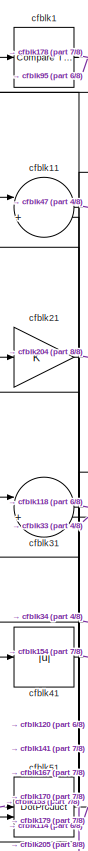
[diagram: root canvas - part 1/8, top left region]
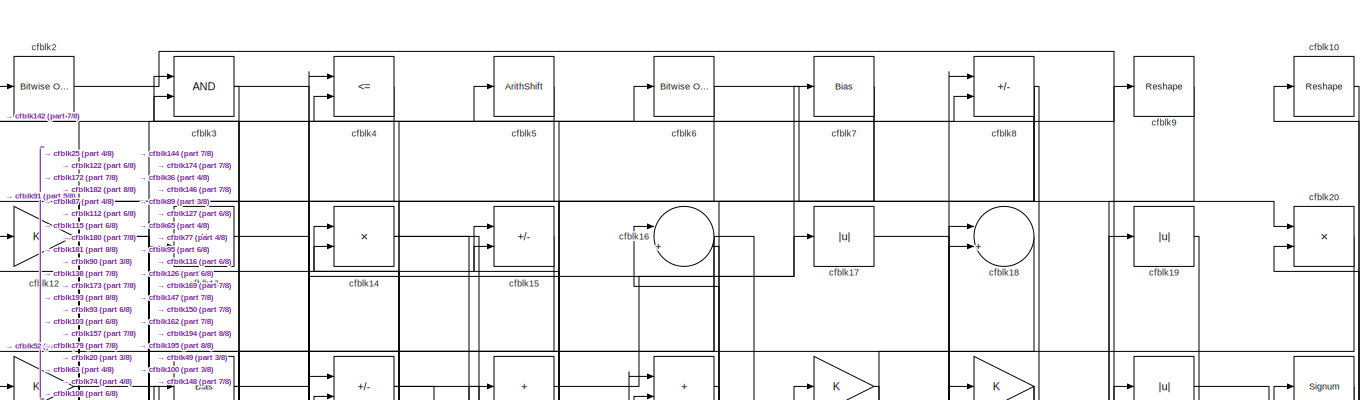
[diagram: root canvas - part 2/8, full width, top band]
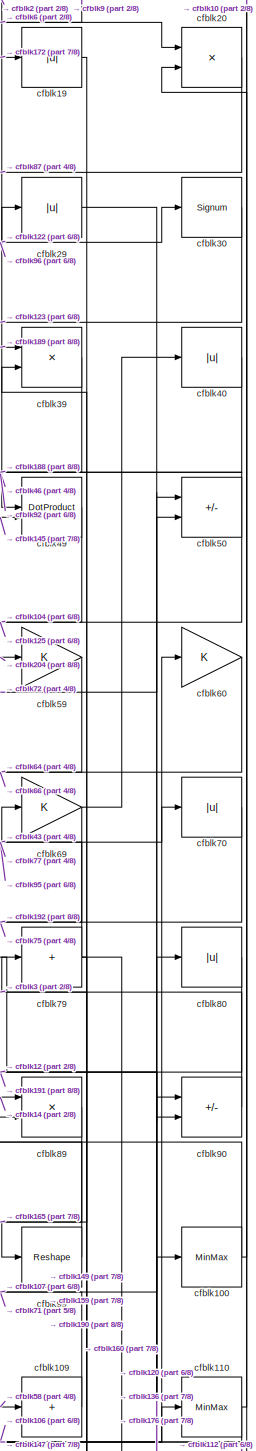
[diagram: root canvas - part 3/8, top right region]
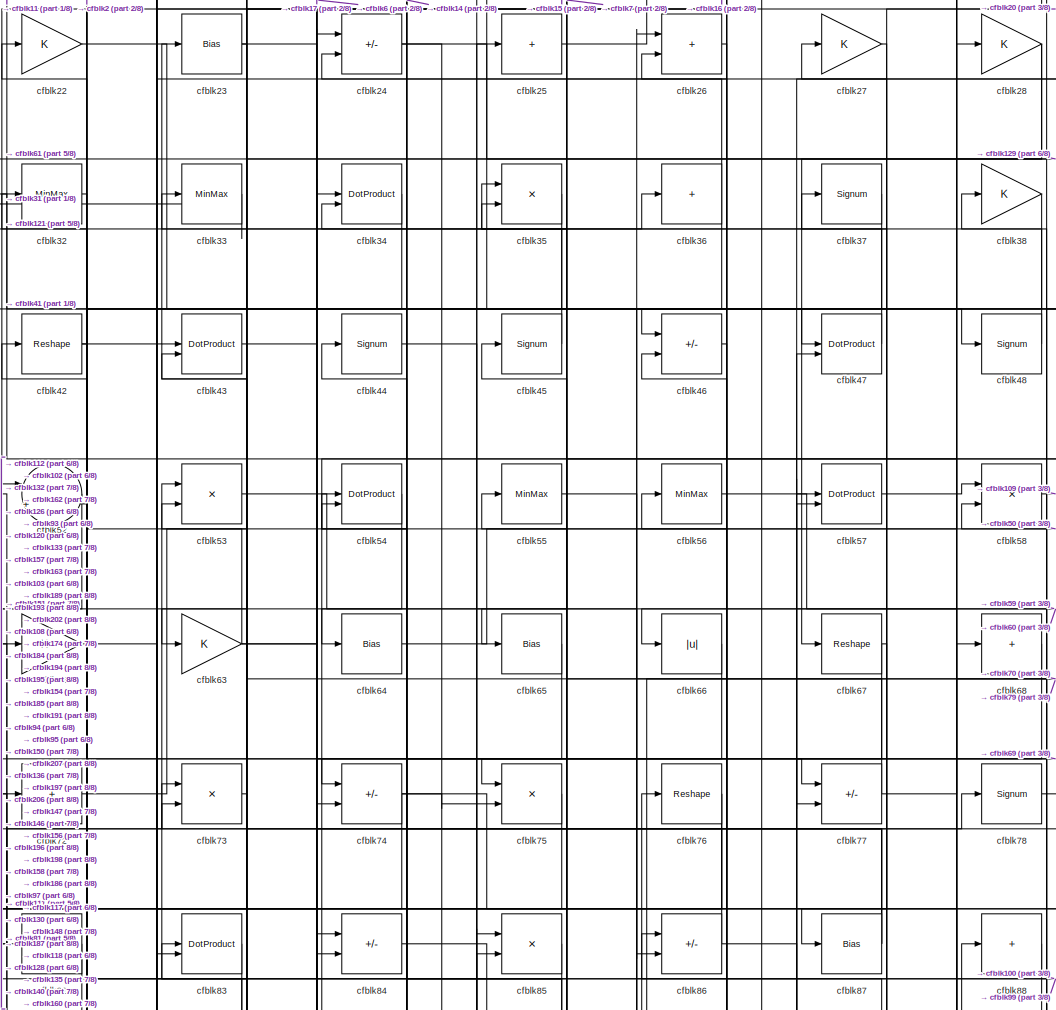
[diagram: root canvas - part 4/8, top center region]
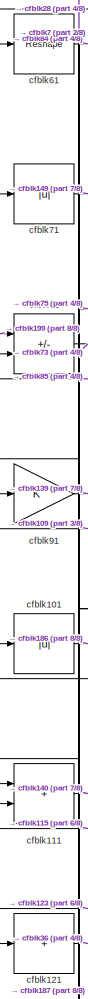
[diagram: root canvas - part 5/8, middle left region]
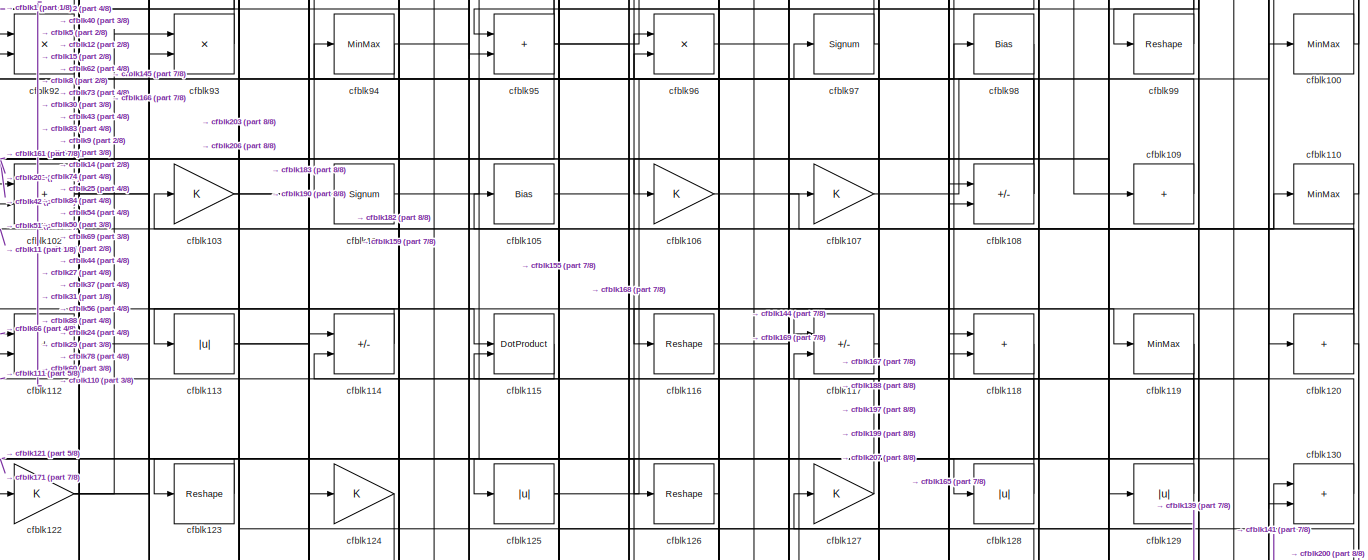
[diagram: root canvas - part 6/8, full width, middle band]
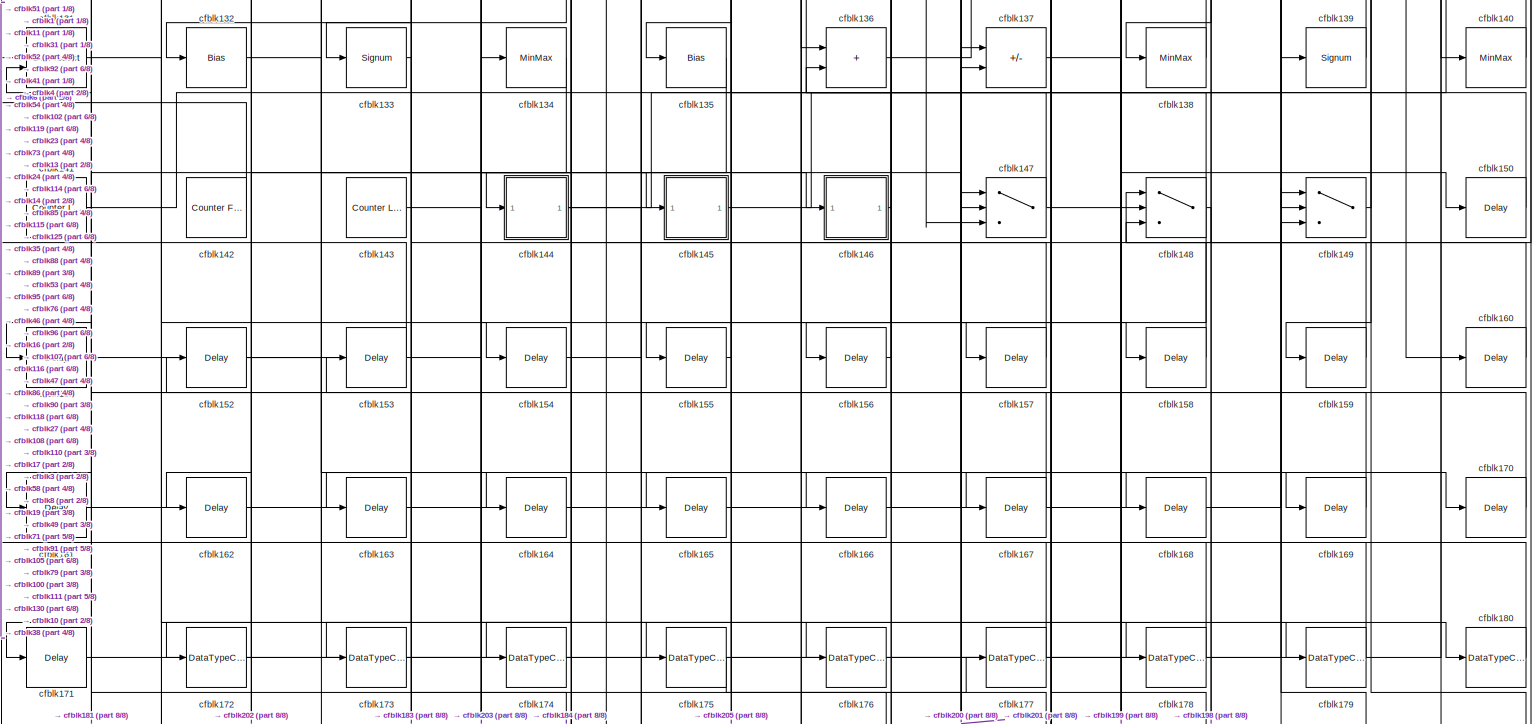
[diagram: root canvas - part 7/8, full width, bottom band]
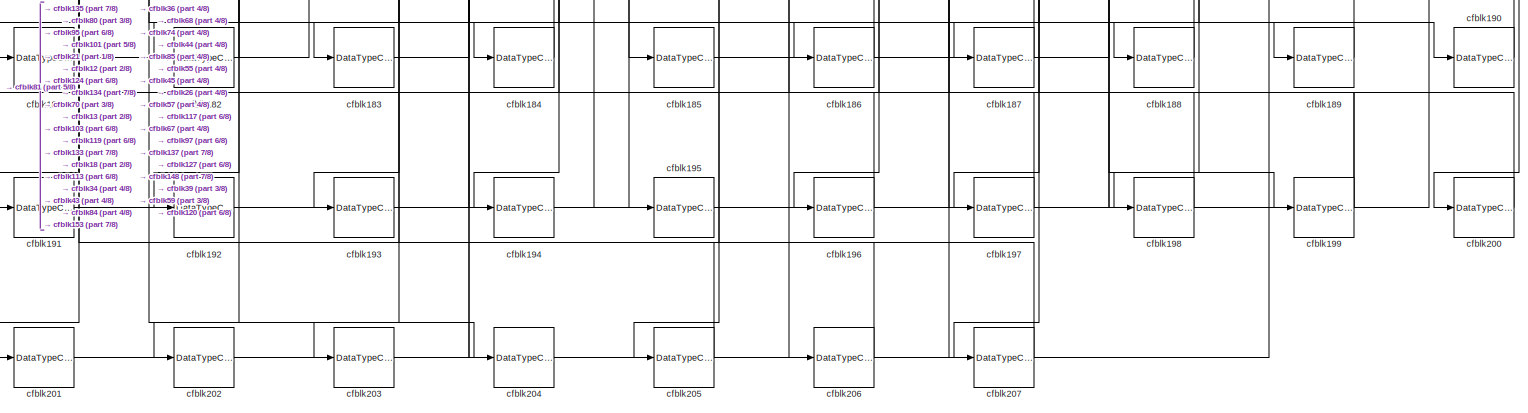
[diagram: root canvas - part 8/8, full width, bottom band]
MODEL slx_cf6d15888ef1
KIND model
CONFIG AbsTol = auto
CONFIG EnableMultiTasking = off
CONFIG FixedStep = auto
CONFIG MaxStep = auto
CONFIG MinStep = auto
CONFIG RelTol = 1e-3
CONFIG SampleTimeConstraint = Unconstrained
CONFIG SolverName = VariableStepAuto
CONFIG StartTime = 0.0
CONFIG StopTime = 10.0
BLOCK [Reference] cfblk1  REF=hdlsllib/Logic and Bit
Operations/Compare
To Zero
  SourceBlock = hdlsllib/Logic and Bit\nOperations/Compare\nTo Zero
  SourceType = Compare To Zero
BLOCK [Reshape] cfblk10
BLOCK [MinMax] cfblk100
BLOCK [Abs] cfblk101
  SaturateOnIntegerOverflow = off
BLOCK [Sum] cfblk102
  IconShape = rectangular
BLOCK [Gain] cfblk103
BLOCK [Signum] cfblk104
BLOCK [Bias] cfblk105
  Bias = 0.0
  SaturateOnIntegerOverflow = off
BLOCK [Gain] cfblk106
BLOCK [Gain] cfblk107
BLOCK [Sum] cfblk108
  IconShape = rectangular
  Inputs = +-
BLOCK [Sum] cfblk109
  IconShape = rectangular
  Inputs = +
BLOCK [Sum] cfblk11
  Inputs = |++
BLOCK [MinMax] cfblk110
BLOCK [Sum] cfblk111
  IconShape = rectangular
BLOCK [Sum] cfblk112
  IconShape = rectangular
BLOCK [Abs] cfblk113
  SaturateOnIntegerOverflow = off
BLOCK [Sum] cfblk114
  IconShape = rectangular
  Inputs = +-
BLOCK [DotProduct] cfblk115
  OutDataTypeStr = Inherit: Inherit via internal rule
BLOCK [Reshape] cfblk116
BLOCK [Sum] cfblk117
  IconShape = rectangular
  Inputs = +-
BLOCK [Sum] cfblk118
  IconShape = rectangular
BLOCK [MinMax] cfblk119
BLOCK [Gain] cfblk12
BLOCK [Sum] cfblk120
  IconShape = rectangular
  Inputs = +
BLOCK [Sum] cfblk121
  IconShape = rectangular
  Inputs = +
BLOCK [Gain] cfblk122
BLOCK [Reshape] cfblk123
BLOCK [Gain] cfblk124
BLOCK [Abs] cfblk125
  SaturateOnIntegerOverflow = off
BLOCK [Reshape] cfblk126
BLOCK [Gain] cfblk127
BLOCK [Abs] cfblk128
  SaturateOnIntegerOverflow = off
BLOCK [Abs] cfblk129
  SaturateOnIntegerOverflow = off
BLOCK [Product] cfblk13
  Inputs = */
  RndMeth = Zero
  SaturateOnIntegerOverflow = on
BLOCK [Sum] cfblk130
  IconShape = rectangular
BLOCK [DotProduct] cfblk131
  OutDataTypeStr = Inherit: Inherit via internal rule
BLOCK [Bias] cfblk132
  Bias = 0.0
  SaturateOnIntegerOverflow = off
BLOCK [Signum] cfblk133
BLOCK [MinMax] cfblk134
BLOCK [Bias] cfblk135
  Bias = 0.0
  SaturateOnIntegerOverflow = off
BLOCK [Sum] cfblk136
  IconShape = rectangular
BLOCK [Sum] cfblk137
  IconShape = rectangular
  Inputs = +-
BLOCK [MinMax] cfblk138
BLOCK [Signum] cfblk139
BLOCK [Product] cfblk14
  Inputs = */
  RndMeth = Zero
  SaturateOnIntegerOverflow = on
BLOCK [MinMax] cfblk140
BLOCK [Reference] cfblk141  REF=hdlsllib/Sources/Counter
Limited
  SourceBlock = hdlsllib/Sources/Counter\nLimited
  SourceType = Counter Limited
BLOCK [Reference] cfblk142  REF=hdlsllib/Sources/Counter
Free-Running
  SourceBlock = hdlsllib/Sources/Counter\nFree-Running
  SourceType = Counter Free-Running
BLOCK [Reference] cfblk143  REF=hdlsllib/Sources/Counter
Limited
  SourceBlock = hdlsllib/Sources/Counter\nLimited
  SourceType = Counter Limited
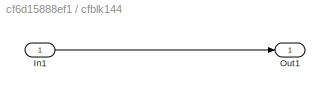
BLOCK [SubSystem] cfblk144
  LibrarySourceBlock = hdlsllib/Ports &\nSubsystems/Subsystem
BLOCK [Inport] cfblk144/In1
BLOCK [Outport] cfblk144/Out1
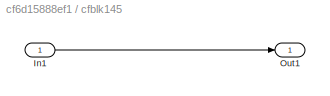
BLOCK [SubSystem] cfblk145
  LibrarySourceBlock = hdlsllib/Ports &\nSubsystems/Subsystem
BLOCK [Inport] cfblk145/In1
BLOCK [Outport] cfblk145/Out1
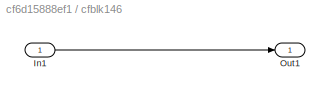
BLOCK [SubSystem] cfblk146
  LibrarySourceBlock = hdlsllib/Ports &\nSubsystems/Subsystem
BLOCK [Inport] cfblk146/In1
BLOCK [Outport] cfblk146/Out1
BLOCK [Switch] cfblk147
  InputSameDT = off
  SaturateOnIntegerOverflow = off
BLOCK [Switch] cfblk148
  InputSameDT = off
  SaturateOnIntegerOverflow = off
BLOCK [Switch] cfblk149
  InputSameDT = off
  SaturateOnIntegerOverflow = off
BLOCK [Sum] cfblk15
  IconShape = rectangular
  Inputs = +-
BLOCK [Delay] cfblk150
  InputPortMap = u0
  SampleTime = 1
BLOCK [Delay] cfblk151
  InputPortMap = u0
  SampleTime = 1
BLOCK [Delay] cfblk152
  InputPortMap = u0
  SampleTime = 1
BLOCK [Delay] cfblk153
  InputPortMap = u0
  SampleTime = 1
BLOCK [Delay] cfblk154
  InputPortMap = u0
  SampleTime = 1
BLOCK [Delay] cfblk155
  InputPortMap = u0
  SampleTime = 1
BLOCK [Delay] cfblk156
  InputPortMap = u0
  SampleTime = 1
BLOCK [Delay] cfblk157
  InputPortMap = u0
  SampleTime = 1
BLOCK [Delay] cfblk158
  InputPortMap = u0
  SampleTime = 1
BLOCK [Delay] cfblk159
  InputPortMap = u0
  SampleTime = 1
BLOCK [Sum] cfblk16
  Inputs = |++
BLOCK [Delay] cfblk160
  InputPortMap = u0
  SampleTime = 1
BLOCK [Delay] cfblk161
  InputPortMap = u0
  SampleTime = 1
BLOCK [Delay] cfblk162
  InputPortMap = u0
  SampleTime = 1
BLOCK [Delay] cfblk163
  InputPortMap = u0
  SampleTime = 1
BLOCK [Delay] cfblk164
  InputPortMap = u0
  SampleTime = 1
BLOCK [Delay] cfblk165
  InputPortMap = u0
  SampleTime = 1
BLOCK [Delay] cfblk166
  InputPortMap = u0
  SampleTime = 1
BLOCK [Delay] cfblk167
  InputPortMap = u0
  SampleTime = 1
BLOCK [Delay] cfblk168
  InputPortMap = u0
  SampleTime = 1
BLOCK [Delay] cfblk169
  InputPortMap = u0
  SampleTime = 1
BLOCK [Abs] cfblk17
  SaturateOnIntegerOverflow = off
BLOCK [Delay] cfblk170
  InputPortMap = u0
  SampleTime = 1
BLOCK [Delay] cfblk171
  InputPortMap = u0
  SampleTime = 1
BLOCK [DataTypeConversion] cfblk172
  RndMeth = Floor
  SaturateOnIntegerOverflow = off
BLOCK [DataTypeConversion] cfblk173
  OutDataTypeStr = uint8
  RndMeth = Floor
  SaturateOnIntegerOverflow = off
BLOCK [DataTypeConversion] cfblk174
  OutDataTypeStr = uint8
  RndMeth = Floor
  SaturateOnIntegerOverflow = off
BLOCK [DataTypeConversion] cfblk175
  OutDataTypeStr = uint8
  RndMeth = Floor
  SaturateOnIntegerOverflow = off
BLOCK [DataTypeConversion] cfblk176
  OutDataTypeStr = uint8
  RndMeth = Floor
  SaturateOnIntegerOverflow = off
BLOCK [DataTypeConversion] cfblk177
  OutDataTypeStr = uint8
  RndMeth = Floor
  SaturateOnIntegerOverflow = off
BLOCK [DataTypeConversion] cfblk178
  OutDataTypeStr = uint8
  RndMeth = Floor
  SaturateOnIntegerOverflow = off
BLOCK [DataTypeConversion] cfblk179
  OutDataTypeStr = uint8
  RndMeth = Floor
  SaturateOnIntegerOverflow = off
BLOCK [Sum] cfblk18
  Inputs = |++
BLOCK [DataTypeConversion] cfblk180
  OutDataTypeStr = uint8
  RndMeth = Floor
  SaturateOnIntegerOverflow = off
BLOCK [DataTypeConversion] cfblk181
  OutDataTypeStr = uint8
  RndMeth = Floor
  SaturateOnIntegerOverflow = off
BLOCK [DataTypeConversion] cfblk182
  OutDataTypeStr = uint8
  RndMeth = Floor
  SaturateOnIntegerOverflow = off
BLOCK [DataTypeConversion] cfblk183
  OutDataTypeStr = uint8
  RndMeth = Floor
  SaturateOnIntegerOverflow = off
BLOCK [DataTypeConversion] cfblk184
  OutDataTypeStr = uint8
  RndMeth = Floor
  SaturateOnIntegerOverflow = off
BLOCK [DataTypeConversion] cfblk185
  OutDataTypeStr = uint8
  RndMeth = Floor
  SaturateOnIntegerOverflow = off
BLOCK [DataTypeConversion] cfblk186
  RndMeth = Floor
  SaturateOnIntegerOverflow = off
BLOCK [DataTypeConversion] cfblk187
  OutDataTypeStr = uint8
  RndMeth = Floor
  SaturateOnIntegerOverflow = off
BLOCK [DataTypeConversion] cfblk188
  OutDataTypeStr = uint8
  RndMeth = Floor
  SaturateOnIntegerOverflow = off
BLOCK [DataTypeConversion] cfblk189
  OutDataTypeStr = uint8
  RndMeth = Floor
  SaturateOnIntegerOverflow = off
BLOCK [Abs] cfblk19
  SaturateOnIntegerOverflow = off
BLOCK [DataTypeConversion] cfblk190
  OutDataTypeStr = uint8
  RndMeth = Floor
  SaturateOnIntegerOverflow = off
BLOCK [DataTypeConversion] cfblk191
  RndMeth = Floor
  SaturateOnIntegerOverflow = off
BLOCK [DataTypeConversion] cfblk192
  OutDataTypeStr = uint8
  RndMeth = Floor
  SaturateOnIntegerOverflow = off
BLOCK [DataTypeConversion] cfblk193
  OutDataTypeStr = uint8
  RndMeth = Floor
  SaturateOnIntegerOverflow = off
BLOCK [DataTypeConversion] cfblk194
  OutDataTypeStr = uint8
  RndMeth = Floor
  SaturateOnIntegerOverflow = off
BLOCK [DataTypeConversion] cfblk195
  OutDataTypeStr = uint8
  RndMeth = Floor
  SaturateOnIntegerOverflow = off
BLOCK [DataTypeConversion] cfblk196
  OutDataTypeStr = uint8
  RndMeth = Floor
  SaturateOnIntegerOverflow = off
BLOCK [DataTypeConversion] cfblk197
  OutDataTypeStr = uint8
  RndMeth = Floor
  SaturateOnIntegerOverflow = off
BLOCK [DataTypeConversion] cfblk198
  OutDataTypeStr = uint8
  RndMeth = Floor
  SaturateOnIntegerOverflow = off
BLOCK [DataTypeConversion] cfblk199
  RndMeth = Floor
  SaturateOnIntegerOverflow = off
BLOCK [Reference] cfblk2  REF=simulink/Logic and Bit
Operations/Bitwise
Operator
  LibrarySourceBlock = hdlsllib/Logic and Bit\nOperations/Bitwise\nOperator
  SourceBlock = simulink/Logic and Bit\nOperations/Bitwise\nOperator
  SourceType = Bitwise Operator
BLOCK [Product] cfblk20
  Inputs = */
  RndMeth = Zero
  SaturateOnIntegerOverflow = on
BLOCK [DataTypeConversion] cfblk200
  OutDataTypeStr = uint8
  RndMeth = Floor
  SaturateOnIntegerOverflow = off
BLOCK [DataTypeConversion] cfblk201
  OutDataTypeStr = uint8
  RndMeth = Floor
  SaturateOnIntegerOverflow = off
BLOCK [DataTypeConversion] cfblk202
  OutDataTypeStr = uint8
  RndMeth = Floor
  SaturateOnIntegerOverflow = off
BLOCK [DataTypeConversion] cfblk203
  OutDataTypeStr = uint8
  RndMeth = Floor
  SaturateOnIntegerOverflow = off
BLOCK [DataTypeConversion] cfblk204
  OutDataTypeStr = uint8
  RndMeth = Floor
  SaturateOnIntegerOverflow = off
BLOCK [DataTypeConversion] cfblk205
  OutDataTypeStr = uint8
  RndMeth = Floor
  SaturateOnIntegerOverflow = off
BLOCK [DataTypeConversion] cfblk206
  OutDataTypeStr = uint8
  RndMeth = Floor
  SaturateOnIntegerOverflow = off
BLOCK [DataTypeConversion] cfblk207
  OutDataTypeStr = uint8
  RndMeth = Floor
  SaturateOnIntegerOverflow = off
BLOCK [Gain] cfblk21
BLOCK [Gain] cfblk22
BLOCK [Bias] cfblk23
  Bias = 0.0
  SaturateOnIntegerOverflow = off
BLOCK [Sum] cfblk24
  IconShape = rectangular
  Inputs = +-
BLOCK [Sum] cfblk25
  IconShape = rectangular
  Inputs = +
BLOCK [Sum] cfblk26
  IconShape = rectangular
BLOCK [Gain] cfblk27
BLOCK [Gain] cfblk28
BLOCK [Abs] cfblk29
  SaturateOnIntegerOverflow = off
BLOCK [Logic] cfblk3
  AllPortsSameDT = off
  OutDataTypeStr = boolean
BLOCK [Signum] cfblk30
BLOCK [Sum] cfblk31
  Inputs = |++
BLOCK [MinMax] cfblk32
BLOCK [MinMax] cfblk33
BLOCK [DotProduct] cfblk34
  OutDataTypeStr = Inherit: Inherit via internal rule
BLOCK [Product] cfblk35
  Inputs = */
  RndMeth = Zero
  SaturateOnIntegerOverflow = on
BLOCK [Sum] cfblk36
  IconShape = rectangular
  Inputs = +
BLOCK [Signum] cfblk37
BLOCK [Gain] cfblk38
BLOCK [Product] cfblk39
  Inputs = */
  RndMeth = Zero
  SaturateOnIntegerOverflow = on
BLOCK [RelationalOperator] cfblk4
  InputSameDT = off
  Operator = <=
  OutDataTypeStr = boolean
BLOCK [Abs] cfblk40
  SaturateOnIntegerOverflow = off
BLOCK [Abs] cfblk41
  SaturateOnIntegerOverflow = off
BLOCK [Reshape] cfblk42
BLOCK [DotProduct] cfblk43
  OutDataTypeStr = Inherit: Inherit via internal rule
BLOCK [Signum] cfblk44
BLOCK [Signum] cfblk45
BLOCK [Sum] cfblk46
  IconShape = rectangular
  Inputs = +-
BLOCK [DotProduct] cfblk47
  OutDataTypeStr = Inherit: Inherit via internal rule
BLOCK [Signum] cfblk48
BLOCK [DotProduct] cfblk49
  OutDataTypeStr = Inherit: Inherit via internal rule
BLOCK [ArithShift] cfblk5
  BitShiftNumber = 8
  InputPortMap = u0
BLOCK [Sum] cfblk50
  IconShape = rectangular
  Inputs = +-
BLOCK [DotProduct] cfblk51
  OutDataTypeStr = Inherit: Inherit via internal rule
BLOCK [Sum] cfblk52
  Inputs = |++
BLOCK [Product] cfblk53
  Inputs = */
  RndMeth = Zero
  SaturateOnIntegerOverflow = on
BLOCK [DotProduct] cfblk54
  OutDataTypeStr = Inherit: Inherit via internal rule
BLOCK [MinMax] cfblk55
BLOCK [MinMax] cfblk56
BLOCK [DotProduct] cfblk57
  OutDataTypeStr = Inherit: Inherit via internal rule
BLOCK [Product] cfblk58
  Inputs = */
  RndMeth = Zero
  SaturateOnIntegerOverflow = on
BLOCK [Gain] cfblk59
BLOCK [Reference] cfblk6  REF=simulink/Logic and Bit
Operations/Bitwise
Operator
  LibrarySourceBlock = hdlsllib/Logic and Bit\nOperations/Bitwise\nOperator
  SourceBlock = simulink/Logic and Bit\nOperations/Bitwise\nOperator
  SourceType = Bitwise Operator
BLOCK [Gain] cfblk60
BLOCK [Reshape] cfblk61
BLOCK [Gain] cfblk62
BLOCK [Gain] cfblk63
BLOCK [Bias] cfblk64
  Bias = 0.0
  SaturateOnIntegerOverflow = off
BLOCK [Bias] cfblk65
  Bias = 0.0
  SaturateOnIntegerOverflow = off
BLOCK [Abs] cfblk66
  SaturateOnIntegerOverflow = off
BLOCK [Reshape] cfblk67
BLOCK [Sum] cfblk68
  IconShape = rectangular
  Inputs = +
BLOCK [Gain] cfblk69
BLOCK [Bias] cfblk7
  Bias = 0.0
  SaturateOnIntegerOverflow = off
BLOCK [Abs] cfblk70
  SaturateOnIntegerOverflow = off
BLOCK [Abs] cfblk71
  SaturateOnIntegerOverflow = off
BLOCK [Sum] cfblk72
  IconShape = rectangular
  Inputs = +
BLOCK [Product] cfblk73
  Inputs = */
  RndMeth = Zero
  SaturateOnIntegerOverflow = on
BLOCK [Sum] cfblk74
  IconShape = rectangular
  Inputs = +-
BLOCK [Product] cfblk75
  Inputs = */
  RndMeth = Zero
  SaturateOnIntegerOverflow = on
BLOCK [Reshape] cfblk76
BLOCK [Sum] cfblk77
  IconShape = rectangular
  Inputs = +-
BLOCK [Signum] cfblk78
BLOCK [Sum] cfblk79
  IconShape = rectangular
  Inputs = +
BLOCK [Sum] cfblk8
  IconShape = rectangular
  Inputs = +-
BLOCK [Abs] cfblk80
  SaturateOnIntegerOverflow = off
BLOCK [Sum] cfblk81
  IconShape = rectangular
  Inputs = +-
BLOCK [Sum] cfblk82
  IconShape = rectangular
  Inputs = +
BLOCK [DotProduct] cfblk83
  OutDataTypeStr = Inherit: Inherit via internal rule
BLOCK [Sum] cfblk84
  IconShape = rectangular
  Inputs = +-
BLOCK [Product] cfblk85
  Inputs = */
  RndMeth = Zero
  SaturateOnIntegerOverflow = on
BLOCK [Sum] cfblk86
  IconShape = rectangular
  Inputs = +-
BLOCK [Bias] cfblk87
  Bias = 0.0
  SaturateOnIntegerOverflow = off
BLOCK [Sum] cfblk88
  IconShape = rectangular
  Inputs = +
BLOCK [Product] cfblk89
  Inputs = */
  RndMeth = Zero
  SaturateOnIntegerOverflow = on
BLOCK [Reshape] cfblk9
BLOCK [Sum] cfblk90
  IconShape = rectangular
  Inputs = +-
BLOCK [Gain] cfblk91
BLOCK [Product] cfblk92
  Inputs = */
  RndMeth = Zero
  SaturateOnIntegerOverflow = on
BLOCK [Product] cfblk93
  Inputs = */
  RndMeth = Zero
  SaturateOnIntegerOverflow = on
BLOCK [MinMax] cfblk94
BLOCK [Sum] cfblk95
  IconShape = rectangular
BLOCK [Product] cfblk96
  Inputs = */
  RndMeth = Zero
  SaturateOnIntegerOverflow = on
BLOCK [Signum] cfblk97
BLOCK [Bias] cfblk98
  Bias = 0.0
  SaturateOnIntegerOverflow = off
BLOCK [Reshape] cfblk99
NET cfblk100:1 -> cfblk10:1, cfblk46:2
LINE cfblk101:1 -> cfblk186:1
NET cfblk102:1 -> cfblk145:1, cfblk166:1
NET cfblk103:1 -> cfblk78:1, cfblk9:1
LINE cfblk104:1 -> cfblk98:1
LINE cfblk105:1 -> cfblk119:1
LINE cfblk106:1 -> cfblk60:1
LINE cfblk107:1 -> cfblk50:2
NET cfblk108:1 -> cfblk14:1, cfblk83:1
LINE cfblk109:1 -> cfblk71:1
LINE cfblk10:1 -> cfblk148:1
NET cfblk110:1 -> cfblk112:2, cfblk20:2
LINE cfblk111:1 -> cfblk140:1
LINE cfblk112:1 -> cfblk15:1
NET cfblk113:1 -> cfblk190:1, cfblk96:1
LINE cfblk114:1 -> cfblk113:1
LINE cfblk115:1 -> cfblk111:2
LINE cfblk116:1 -> cfblk169:1
LINE cfblk117:1 -> cfblk207:1
LINE cfblk118:1 -> cfblk167:1
NET cfblk119:1 -> cfblk171:1, cfblk203:1
LINE cfblk11:1 -> cfblk47:1
NET cfblk120:1 -> cfblk11:1, cfblk200:1, cfblk43:1
LINE cfblk121:1 -> cfblk36:1
NET cfblk122:1 -> cfblk30:1, cfblk8:2, cfblk93:1
LINE cfblk123:1 -> cfblk121:1
LINE cfblk124:1 -> cfblk182:1
NET cfblk125:1 -> cfblk155:1, cfblk97:1
LINE cfblk126:1 -> cfblk16:2
LINE cfblk127:1 -> cfblk5:1
LINE cfblk128:1 -> cfblk88:1
LINE cfblk129:1 -> cfblk94:1
NET cfblk12:1 -> cfblk115:1, cfblk90:2
LINE cfblk130:1 -> cfblk37:1
LINE cfblk131:1 -> cfblk176:1
LINE cfblk132:1 -> cfblk164:1
LINE cfblk133:1 -> cfblk183:1
LINE cfblk134:1 -> cfblk202:1
LINE cfblk135:1 -> cfblk181:1
LINE cfblk136:1 -> cfblk90:1
LINE cfblk137:1 -> cfblk199:1
LINE cfblk138:1 -> cfblk3:1
LINE cfblk139:1 -> cfblk105:1
LINE cfblk13:1 -> cfblk179:1
LINE cfblk140:1 -> cfblk38:1
NET cfblk141:1 -> cfblk130:1, cfblk1:1
LINE cfblk142:1 -> cfblk6:1
LINE cfblk143:1 -> cfblk175:1
LINE cfblk144/In1:1 -> cfblk144/Out1:1
NET cfblk144:1 -> cfblk107:1, cfblk170:1
LINE cfblk145/In1:1 -> cfblk145/Out1:1
LINE cfblk145:1 -> cfblk49:2
LINE cfblk146/In1:1 -> cfblk146/Out1:1
LINE cfblk146:1 -> cfblk86:1
NET cfblk147:1 -> cfblk110:1, cfblk76:1
NET cfblk148:1 -> cfblk198:1, cfblk205:1, cfblk27:1
LINE cfblk149:1 -> cfblk79:1
NET cfblk14:1 -> cfblk146:1, cfblk89:1
LINE cfblk150:1 -> cfblk35:2
LINE cfblk151:1 -> cfblk24:1
LINE cfblk152:1 -> cfblk180:1
LINE cfblk153:1 -> cfblk51:1
LINE cfblk154:1 -> cfblk85:1
LINE cfblk155:1 -> cfblk115:2
LINE cfblk156:1 -> cfblk136:2
LINE cfblk157:1 -> cfblk53:2
LINE cfblk158:1 -> cfblk148:3
LINE cfblk159:1 -> cfblk114:2
LINE cfblk15:1 -> cfblk52:1
LINE cfblk160:1 -> cfblk58:2
LINE cfblk161:1 -> cfblk149:1
LINE cfblk162:1 -> cfblk8:1
LINE cfblk163:1 -> cfblk47:2
LINE cfblk164:1 -> cfblk147:1
LINE cfblk165:1 -> cfblk108:2
LINE cfblk166:1 -> cfblk96:2
LINE cfblk167:1 -> cfblk31:1
LINE cfblk168:1 -> cfblk149:3
LINE cfblk169:1 -> cfblk16:1
NET cfblk16:1 -> cfblk147:3, cfblk63:1, cfblk93:2
LINE cfblk170:1 -> cfblk11:2
LINE cfblk171:1 -> cfblk148:2
NET cfblk172:1 -> cfblk152:1, cfblk19:1
LINE cfblk173:1 -> cfblk4:1
LINE cfblk174:1 -> cfblk4:2
LINE cfblk175:1 -> cfblk177:1
LINE cfblk176:1 -> cfblk100:1
LINE cfblk177:1 -> cfblk131:1
LINE cfblk178:1 -> cfblk131:2
LINE cfblk179:1 -> cfblk51:2
LINE cfblk17:1 -> cfblk150:1
LINE cfblk180:1 -> cfblk13:1
LINE cfblk181:1 -> cfblk13:2
LINE cfblk182:1 -> cfblk12:1
LINE cfblk183:1 -> cfblk124:1
LINE cfblk184:1 -> cfblk153:1
LINE cfblk185:1 -> cfblk68:1
NET cfblk186:1 -> cfblk45:1, cfblk57:1
LINE cfblk187:1 -> cfblk101:1
LINE cfblk188:1 -> cfblk127:1
LINE cfblk189:1 -> cfblk39:1
LINE cfblk18:1 -> cfblk193:1
LINE cfblk190:1 -> cfblk39:2
NET cfblk191:1 -> cfblk57:2, cfblk85:2
LINE cfblk192:1 -> cfblk80:1
LINE cfblk193:1 -> cfblk34:1
LINE cfblk194:1 -> cfblk18:1
LINE cfblk195:1 -> cfblk18:2
LINE cfblk196:1 -> cfblk34:2
LINE cfblk197:1 -> cfblk26:1
LINE cfblk198:1 -> cfblk26:2
NET cfblk199:1 -> cfblk117:2, cfblk81:1
LINE cfblk19:1 -> cfblk99:1
NET cfblk1:1 -> cfblk178:1, cfblk95:2
LINE cfblk200:1 -> cfblk137:1
LINE cfblk201:1 -> cfblk137:2
LINE cfblk202:1 -> cfblk84:1
LINE cfblk203:1 -> cfblk134:1
LINE cfblk204:1 -> cfblk59:1
LINE cfblk205:1 -> cfblk21:1
LINE cfblk206:1 -> cfblk103:1
LINE cfblk207:1 -> cfblk55:1
LINE cfblk20:1 -> cfblk87:1
LINE cfblk21:1 -> cfblk204:1
LINE cfblk22:1 -> cfblk48:1
NET cfblk23:1 -> cfblk147:2, cfblk163:1
NET cfblk24:1 -> cfblk129:1, cfblk75:2
LINE cfblk25:1 -> cfblk7:1
LINE cfblk26:1 -> cfblk196:1
LINE cfblk27:1 -> cfblk117:1
NET cfblk28:1 -> cfblk61:1, cfblk67:1
LINE cfblk29:1 -> cfblk120:1
LINE cfblk2:1 -> cfblk49:1
LINE cfblk30:1 -> cfblk123:1
LINE cfblk31:1 -> cfblk118:1
LINE cfblk32:1 -> cfblk52:2
LINE cfblk33:1 -> cfblk31:2
LINE cfblk34:1 -> cfblk41:1
LINE cfblk35:1 -> cfblk62:1
NET cfblk36:1 -> cfblk14:2, cfblk194:1
LINE cfblk37:1 -> cfblk82:1
LINE cfblk38:1 -> cfblk86:2
LINE cfblk39:1 -> cfblk188:1
NET cfblk3:1 -> cfblk157:1, cfblk173:1
LINE cfblk40:1 -> cfblk92:1
LINE cfblk41:1 -> cfblk154:1
NET cfblk42:1 -> cfblk22:1, cfblk23:1
LINE cfblk43:1 -> cfblk189:1
LINE cfblk44:1 -> cfblk185:1
LINE cfblk45:1 -> cfblk24:2
LINE cfblk46:1 -> cfblk156:1
LINE cfblk47:1 -> cfblk35:1
LINE cfblk48:1 -> cfblk33:1
LINE cfblk49:1 -> cfblk104:1
LINE cfblk4:1 -> cfblk172:1
NET cfblk50:1 -> cfblk125:1, cfblk46:1
LINE cfblk51:1 -> cfblk114:1
LINE cfblk52:1 -> cfblk151:1
LINE cfblk53:1 -> cfblk136:1
LINE cfblk54:1 -> cfblk162:1
LINE cfblk55:1 -> cfblk206:1
LINE cfblk56:1 -> cfblk108:1
LINE cfblk57:1 -> cfblk58:1
LINE cfblk58:1 -> cfblk109:1
LINE cfblk59:1 -> cfblk64:1
LINE cfblk5:1 -> cfblk122:1
LINE cfblk60:1 -> cfblk66:1
LINE cfblk61:1 -> cfblk84:2
LINE cfblk62:1 -> cfblk126:1
NET cfblk63:1 -> cfblk17:1, cfblk32:1, cfblk77:1
LINE cfblk64:1 -> cfblk28:1
LINE cfblk65:1 -> cfblk74:1
LINE cfblk66:1 -> cfblk112:1
NET cfblk67:1 -> cfblk187:1, cfblk77:2
LINE cfblk68:1 -> cfblk184:1
NET cfblk69:1 -> cfblk40:1, cfblk75:1
NET cfblk6:1 -> cfblk20:1, cfblk74:2
LINE cfblk70:1 -> cfblk192:1
LINE cfblk71:1 -> cfblk149:2
LINE cfblk72:1 -> cfblk50:1
LINE cfblk73:1 -> cfblk133:1
NET cfblk74:1 -> cfblk118:2, cfblk195:1, cfblk83:2
LINE cfblk75:1 -> cfblk111:1
NET cfblk76:1 -> cfblk132:1, cfblk174:1
NET cfblk77:1 -> cfblk15:2, cfblk70:1
LINE cfblk78:1 -> cfblk130:2
NET cfblk79:1 -> cfblk159:1, cfblk160:1, cfblk43:2
NET cfblk7:1 -> cfblk65:1, cfblk91:1
LINE cfblk80:1 -> cfblk191:1
LINE cfblk81:1 -> cfblk73:1
LINE cfblk82:1 -> cfblk102:1
LINE cfblk83:1 -> cfblk102:2
LINE cfblk84:1 -> cfblk128:1
LINE cfblk85:1 -> cfblk81:2
NET cfblk86:1 -> cfblk158:1, cfblk53:1
NET cfblk87:1 -> cfblk2:1, cfblk54:2, cfblk56:1
LINE cfblk88:1 -> cfblk135:1
LINE cfblk89:1 -> cfblk165:1
NET cfblk8:1 -> cfblk116:1, cfblk138:1, cfblk144:1, cfblk95:1
LINE cfblk90:1 -> cfblk3:2
LINE cfblk91:1 -> cfblk139:1
LINE cfblk92:1 -> cfblk161:1
LINE cfblk93:1 -> cfblk73:2
NET cfblk94:1 -> cfblk25:1, cfblk92:2
NET cfblk95:1 -> cfblk168:1, cfblk201:1, cfblk42:1, cfblk54:1, cfblk69:1
LINE cfblk96:1 -> cfblk29:1
NET cfblk97:1 -> cfblk197:1, cfblk44:1
LINE cfblk98:1 -> cfblk106:1
LINE cfblk99:1 -> cfblk72:1
LINE cfblk9:1 -> cfblk89:2
note: NET lines group one-source signal fan-out (src -> all destinations, sorted); 1:1 wires keep LINE
